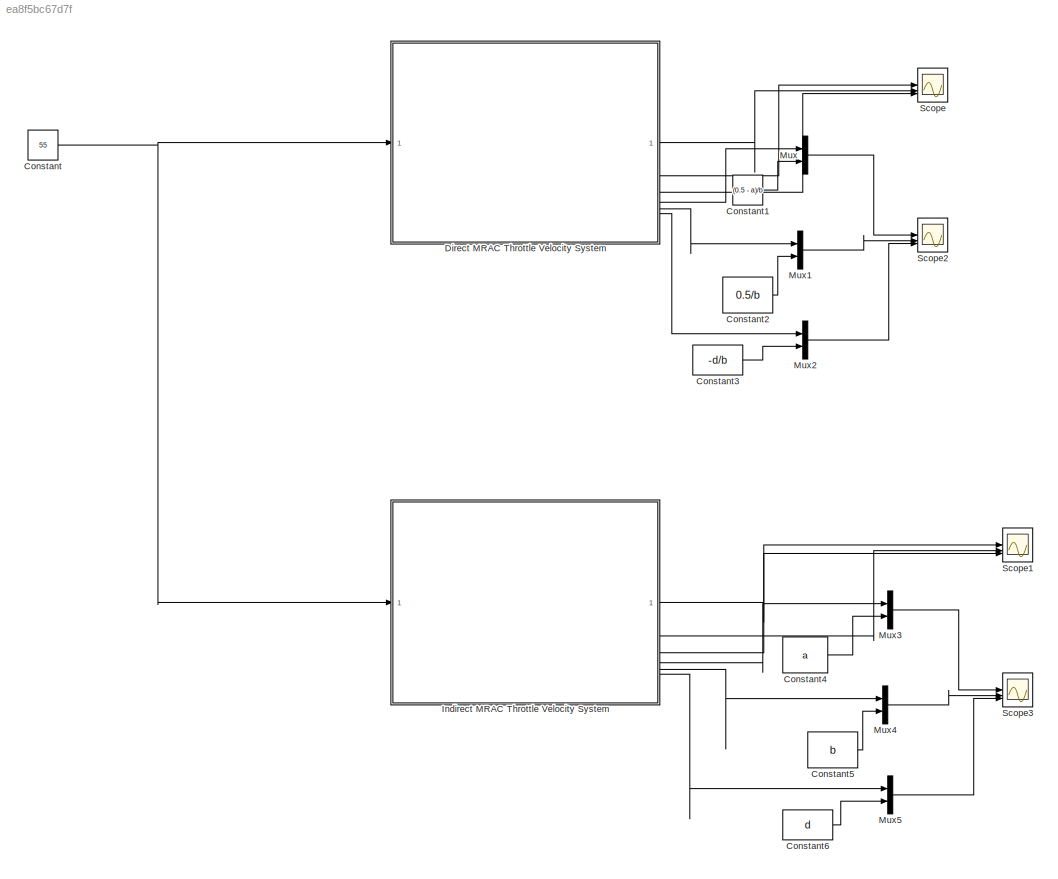
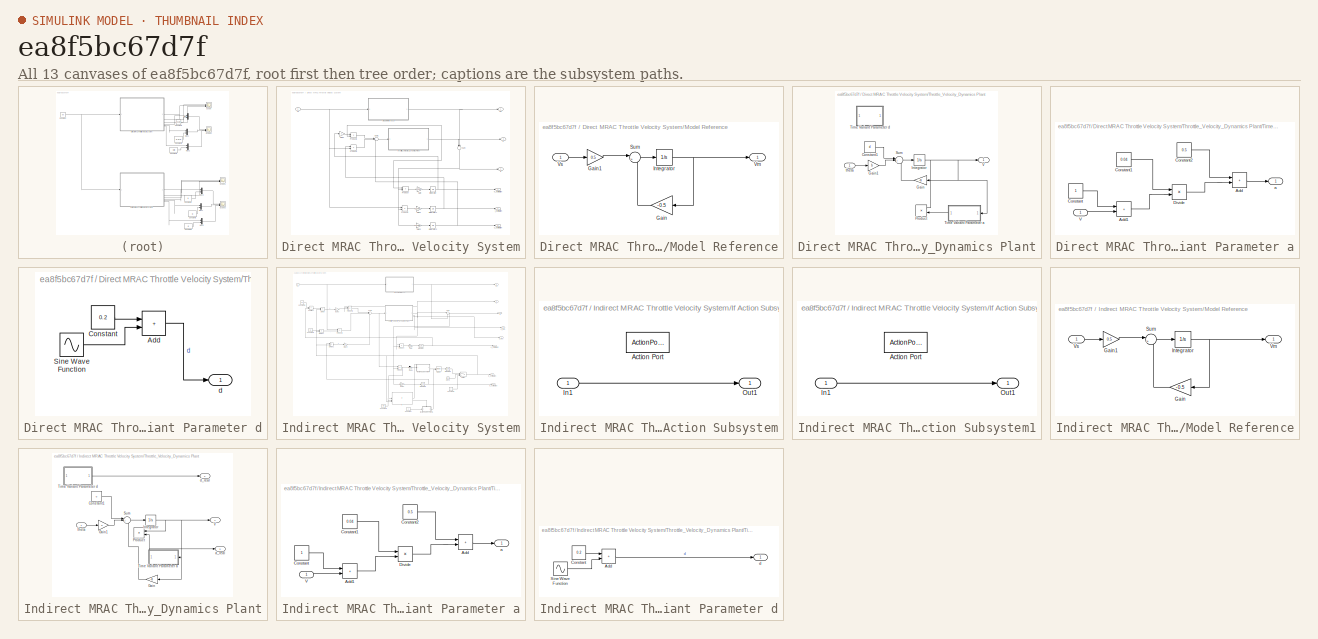
[diagram: thumbnail index - all 13 canvases of the model, root first then tree order]
MODEL slx_ea8f5bc67d7f
KIND model
CONFIG AbsTol = auto
CONFIG EnableMultiTasking = off
CONFIG FixedStep = auto
CONFIG MaxStep = auto
CONFIG MinStep = auto
CONFIG RelTol = 1e-3
CONFIG SampleTimeConstraint = Unconstrained
CONFIG SolverName = VariableStepAuto
CONFIG StartTime = 0.0
CONFIG StopTime = 20.0
BLOCK [Constant] Constant
  Value = 55
BLOCK [Constant] Constant1
  Value = (0.5 - a)/b
BLOCK [Constant] Constant2
  Value = 0.5/b
BLOCK [Constant] Constant3
  Value = -d/b
BLOCK [Constant] Constant4
  Value = a
BLOCK [Constant] Constant5
  Value = b
BLOCK [Constant] Constant6
  Value = d
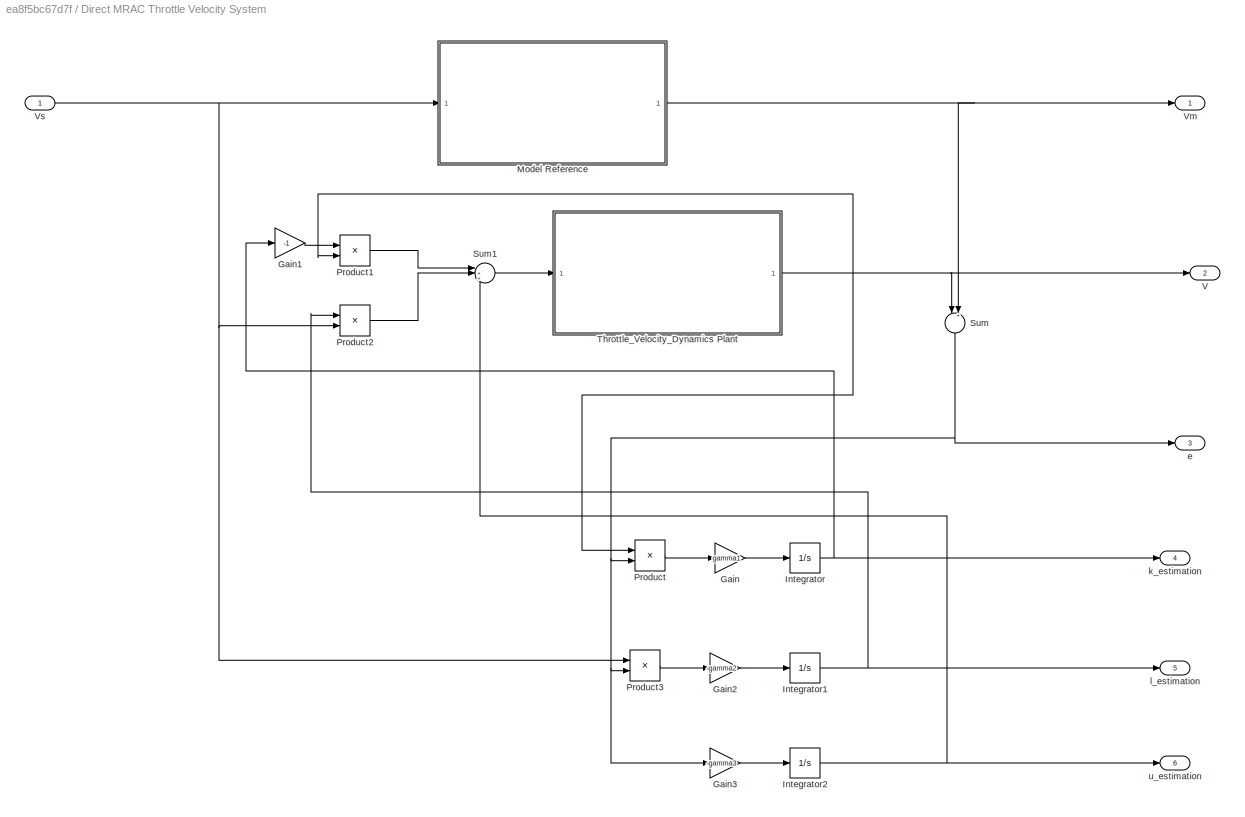
BLOCK [SubSystem] Direct MRAC Throttle Velocity System
BLOCK [Gain] Direct MRAC Throttle Velocity System/Gain
  Gain = gamma1
BLOCK [Gain] Direct MRAC Throttle Velocity System/Gain1
  Gain = -1
BLOCK [Gain] Direct MRAC Throttle Velocity System/Gain2
  Gain = -gamma2
BLOCK [Gain] Direct MRAC Throttle Velocity System/Gain3
  Gain = -gamma3
BLOCK [Integrator] Direct MRAC Throttle Velocity System/Integrator
BLOCK [Integrator] Direct MRAC Throttle Velocity System/Integrator1
BLOCK [Integrator] Direct MRAC Throttle Velocity System/Integrator2
BLOCK [SubSystem] Direct MRAC Throttle Velocity System/Model Reference
BLOCK [Gain] Direct MRAC Throttle Velocity System/Model Reference/Gain
  Gain = -0.5
BLOCK [Gain] Direct MRAC Throttle Velocity System/Model Reference/Gain1
  Gain = 0.5
BLOCK [Integrator] Direct MRAC Throttle Velocity System/Model Reference/Integrator
BLOCK [Sum] Direct MRAC Throttle Velocity System/Model Reference/Sum
  Inputs = |++
BLOCK [Outport] Direct MRAC Throttle Velocity System/Model Reference/Vm
BLOCK [Inport] Direct MRAC Throttle Velocity System/Model Reference/Vs
BLOCK [Product] Direct MRAC Throttle Velocity System/Product
BLOCK [Product] Direct MRAC Throttle Velocity System/Product1
BLOCK [Product] Direct MRAC Throttle Velocity System/Product2
BLOCK [Product] Direct MRAC Throttle Velocity System/Product3
BLOCK [Sum] Direct MRAC Throttle Velocity System/Sum
  Inputs = |+-
  NameLocation = right
BLOCK [Sum] Direct MRAC Throttle Velocity System/Sum1
  Inputs = |+++
BLOCK [SubSystem] Direct MRAC Throttle Velocity System/Throttle_Velocity_Dynamics Plant
BLOCK [Constant] Direct MRAC Throttle Velocity System/Throttle_Velocity_Dynamics Plant/Constant1
  Value = d
BLOCK [Gain] Direct MRAC Throttle Velocity System/Throttle_Velocity_Dynamics Plant/Gain
  Gain = -a
BLOCK [Gain] Direct MRAC Throttle Velocity System/Throttle_Velocity_Dynamics Plant/Gain1
  Gain = b
BLOCK [Integrator] Direct MRAC Throttle Velocity System/Throttle_Velocity_Dynamics Plant/Integrator
BLOCK [Product] Direct MRAC Throttle Velocity System/Throttle_Velocity_Dynamics Plant/Product
BLOCK [Sum] Direct MRAC Throttle Velocity System/Throttle_Velocity_Dynamics Plant/Sum
  Inputs = |+++
BLOCK [SubSystem] Direct MRAC Throttle Velocity System/Throttle_Velocity_Dynamics Plant/Time Variant Parameter a
BLOCK [Sum] Direct MRAC Throttle Velocity System/Throttle_Velocity_Dynamics Plant/Time Variant Parameter a/Add
  IconShape = rectangular
BLOCK [Sum] Direct MRAC Throttle Velocity System/Throttle_Velocity_Dynamics Plant/Time Variant Parameter a/Add1
  IconShape = rectangular
BLOCK [Constant] Direct MRAC Throttle Velocity System/Throttle_Velocity_Dynamics Plant/Time Variant Parameter a/Constant
BLOCK [Constant] Direct MRAC Throttle Velocity System/Throttle_Velocity_Dynamics Plant/Time Variant Parameter a/Constant1
  Value = 0.04
BLOCK [Constant] Direct MRAC Throttle Velocity System/Throttle_Velocity_Dynamics Plant/Time Variant Parameter a/Constant2
  Value = 0.5
BLOCK [Product] Direct MRAC Throttle Velocity System/Throttle_Velocity_Dynamics Plant/Time Variant Parameter a/Divide
  Inputs = */
BLOCK [Inport] Direct MRAC Throttle Velocity System/Throttle_Velocity_Dynamics Plant/Time Variant Parameter a/V
BLOCK [Outport] Direct MRAC Throttle Velocity System/Throttle_Velocity_Dynamics Plant/Time Variant Parameter a/a
BLOCK [SubSystem] Direct MRAC Throttle Velocity System/Throttle_Velocity_Dynamics Plant/Time Variant Parameter d
BLOCK [Sum] Direct MRAC Throttle Velocity System/Throttle_Velocity_Dynamics Plant/Time Variant Parameter d/Add
  IconShape = rectangular
BLOCK [Constant] Direct MRAC Throttle Velocity System/Throttle_Velocity_Dynamics Plant/Time Variant Parameter d/Constant
  Value = 0.2
BLOCK [Sin] Direct MRAC Throttle Velocity System/Throttle_Velocity_Dynamics Plant/Time Variant Parameter d/Sine Wave Function
  Frequency = 0.02
  SampleTime = 0
BLOCK [Outport] Direct MRAC Throttle Velocity System/Throttle_Velocity_Dynamics Plant/Time Variant Parameter d/d
BLOCK [Outport] Direct MRAC Throttle Velocity System/Throttle_Velocity_Dynamics Plant/V
BLOCK [Inport] Direct MRAC Throttle Velocity System/Throttle_Velocity_Dynamics Plant/theta
BLOCK [Outport] Direct MRAC Throttle Velocity System/V
  Port = 2
BLOCK [Outport] Direct MRAC Throttle Velocity System/Vm
BLOCK [Inport] Direct MRAC Throttle Velocity System/Vs
BLOCK [Outport] Direct MRAC Throttle Velocity System/e
  Port = 3
BLOCK [Outport] Direct MRAC Throttle Velocity System/k_estimation
  Port = 4
BLOCK [Outport] Direct MRAC Throttle Velocity System/l_estimation
  Port = 5
BLOCK [Outport] Direct MRAC Throttle Velocity System/u_estimation
  Port = 6
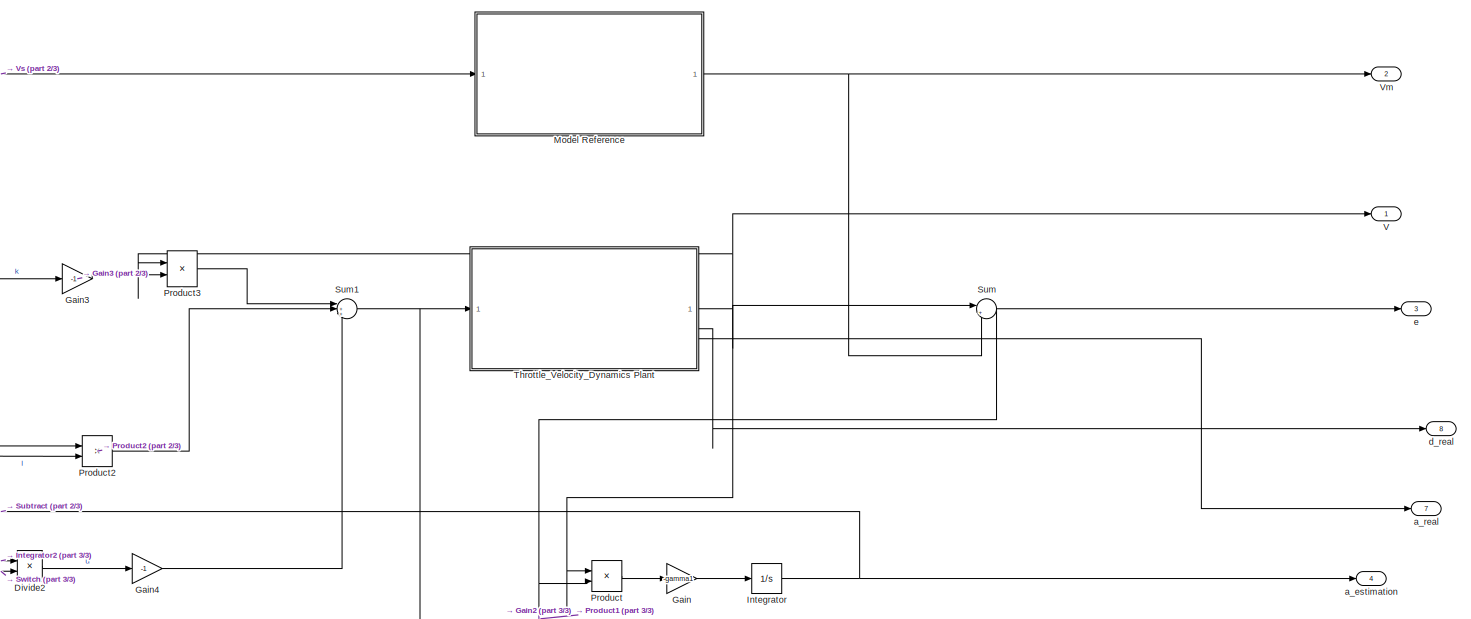
[diagram: Indirect MRAC Throttle Velocity System - part 1/3, full width, top band]
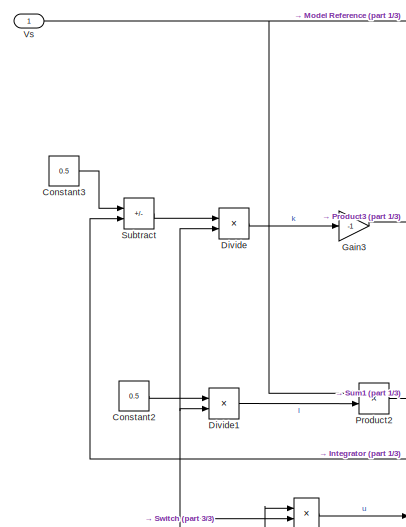
[diagram: Indirect MRAC Throttle Velocity System - part 2/3, top left region]
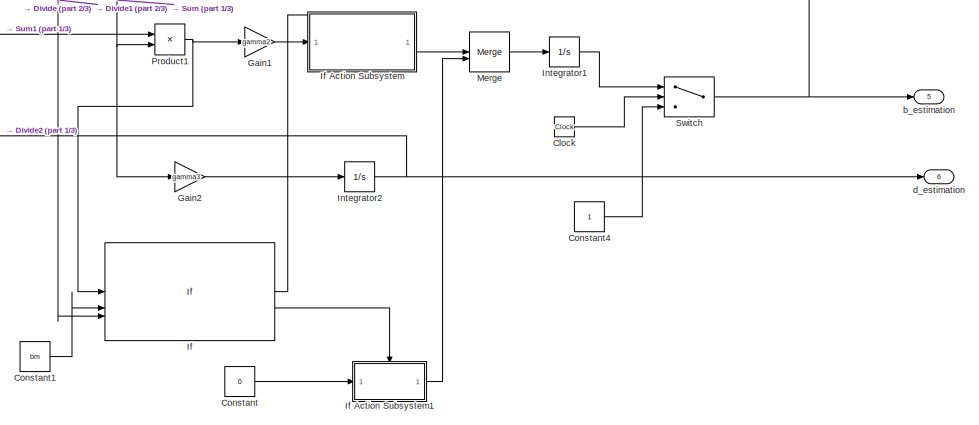
[diagram: Indirect MRAC Throttle Velocity System - part 3/3, bottom right region]
BLOCK [SubSystem] Indirect MRAC Throttle Velocity System
BLOCK [Clock] Indirect MRAC Throttle Velocity System/Clock
BLOCK [Constant] Indirect MRAC Throttle Velocity System/Constant
  Value = 0
BLOCK [Constant] Indirect MRAC Throttle Velocity System/Constant1
  Value = bm
BLOCK [Constant] Indirect MRAC Throttle Velocity System/Constant2
  Value = 0.5
BLOCK [Constant] Indirect MRAC Throttle Velocity System/Constant3
  Value = 0.5
BLOCK [Constant] Indirect MRAC Throttle Velocity System/Constant4
BLOCK [Product] Indirect MRAC Throttle Velocity System/Divide
  Inputs = */
BLOCK [Product] Indirect MRAC Throttle Velocity System/Divide1
  Inputs = */
BLOCK [Product] Indirect MRAC Throttle Velocity System/Divide2
  Inputs = */
BLOCK [Gain] Indirect MRAC Throttle Velocity System/Gain
  Gain = -gamma1
BLOCK [Gain] Indirect MRAC Throttle Velocity System/Gain1
  Gain = gamma2
BLOCK [Gain] Indirect MRAC Throttle Velocity System/Gain2
  Gain = gamma3
BLOCK [Gain] Indirect MRAC Throttle Velocity System/Gain3
  Gain = -1
BLOCK [Gain] Indirect MRAC Throttle Velocity System/Gain4
  Gain = -1
BLOCK [If] Indirect MRAC Throttle Velocity System/If
  IfExpression = (u3 > u2) | (u3 == u2 & u1 >= 0)
  NumInputs = 3
BLOCK [SubSystem] Indirect MRAC Throttle Velocity System/If Action Subsystem
  TreatAsAtomicUnit = on
BLOCK [ActionPort] Indirect MRAC Throttle Velocity System/If Action Subsystem/Action Port
  ActionPortLabel = if((u3 > u2) | (u3 == u2 & u1 >= 0))
BLOCK [Inport] Indirect MRAC Throttle Velocity System/If Action Subsystem/In1
BLOCK [Outport] Indirect MRAC Throttle Velocity System/If Action Subsystem/Out1
BLOCK [SubSystem] Indirect MRAC Throttle Velocity System/If Action Subsystem1
  TreatAsAtomicUnit = on
BLOCK [ActionPort] Indirect MRAC Throttle Velocity System/If Action Subsystem1/Action Port
  ActionPortLabel = else
BLOCK [Inport] Indirect MRAC Throttle Velocity System/If Action Subsystem1/In1
BLOCK [Outport] Indirect MRAC Throttle Velocity System/If Action Subsystem1/Out1
BLOCK [Integrator] Indirect MRAC Throttle Velocity System/Integrator
BLOCK [Integrator] Indirect MRAC Throttle Velocity System/Integrator1
BLOCK [Integrator] Indirect MRAC Throttle Velocity System/Integrator2
BLOCK [Merge] Indirect MRAC Throttle Velocity System/Merge
BLOCK [SubSystem] Indirect MRAC Throttle Velocity System/Model Reference
BLOCK [Gain] Indirect MRAC Throttle Velocity System/Model Reference/Gain
  Gain = -0.5
BLOCK [Gain] Indirect MRAC Throttle Velocity System/Model Reference/Gain1
  Gain = 0.5
BLOCK [Integrator] Indirect MRAC Throttle Velocity System/Model Reference/Integrator
BLOCK [Sum] Indirect MRAC Throttle Velocity System/Model Reference/Sum
  Inputs = |++
BLOCK [Outport] Indirect MRAC Throttle Velocity System/Model Reference/Vm
BLOCK [Inport] Indirect MRAC Throttle Velocity System/Model Reference/Vs
BLOCK [Product] Indirect MRAC Throttle Velocity System/Product
BLOCK [Product] Indirect MRAC Throttle Velocity System/Product1
BLOCK [Product] Indirect MRAC Throttle Velocity System/Product2
BLOCK [Product] Indirect MRAC Throttle Velocity System/Product3
BLOCK [Sum] Indirect MRAC Throttle Velocity System/Subtract
  IconShape = rectangular
  Inputs = +-
BLOCK [Sum] Indirect MRAC Throttle Velocity System/Sum
  Inputs = |+-
BLOCK [Sum] Indirect MRAC Throttle Velocity System/Sum1
  Inputs = |+++
BLOCK [Switch] Indirect MRAC Throttle Velocity System/Switch
  Criteria = u2 > Threshold
  InputSameDT = off
  SaturateOnIntegerOverflow = off
  Threshold = 0.25
BLOCK [SubSystem] Indirect MRAC Throttle Velocity System/Throttle_Velocity_Dynamics Plant
BLOCK [Constant] Indirect MRAC Throttle Velocity System/Throttle_Velocity_Dynamics Plant/Constant1
  Value = d
BLOCK [Gain] Indirect MRAC Throttle Velocity System/Throttle_Velocity_Dynamics Plant/Gain
  Gain = -a
BLOCK [Gain] Indirect MRAC Throttle Velocity System/Throttle_Velocity_Dynamics Plant/Gain1
  Gain = b
BLOCK [Integrator] Indirect MRAC Throttle Velocity System/Throttle_Velocity_Dynamics Plant/Integrator
BLOCK [Product] Indirect MRAC Throttle Velocity System/Throttle_Velocity_Dynamics Plant/Product
BLOCK [Sum] Indirect MRAC Throttle Velocity System/Throttle_Velocity_Dynamics Plant/Sum
  Inputs = |+++
BLOCK [SubSystem] Indirect MRAC Throttle Velocity System/Throttle_Velocity_Dynamics Plant/Time Variant Parameter a
BLOCK [Sum] Indirect MRAC Throttle Velocity System/Throttle_Velocity_Dynamics Plant/Time Variant Parameter a/Add
  IconShape = rectangular
BLOCK [Sum] Indirect MRAC Throttle Velocity System/Throttle_Velocity_Dynamics Plant/Time Variant Parameter a/Add1
  IconShape = rectangular
BLOCK [Constant] Indirect MRAC Throttle Velocity System/Throttle_Velocity_Dynamics Plant/Time Variant Parameter a/Constant
BLOCK [Constant] Indirect MRAC Throttle Velocity System/Throttle_Velocity_Dynamics Plant/Time Variant Parameter a/Constant1
  Value = 0.04
BLOCK [Constant] Indirect MRAC Throttle Velocity System/Throttle_Velocity_Dynamics Plant/Time Variant Parameter a/Constant2
  Value = 0.5
BLOCK [Product] Indirect MRAC Throttle Velocity System/Throttle_Velocity_Dynamics Plant/Time Variant Parameter a/Divide
  Inputs = */
BLOCK [Inport] Indirect MRAC Throttle Velocity System/Throttle_Velocity_Dynamics Plant/Time Variant Parameter a/V
BLOCK [Outport] Indirect MRAC Throttle Velocity System/Throttle_Velocity_Dynamics Plant/Time Variant Parameter a/a
BLOCK [SubSystem] Indirect MRAC Throttle Velocity System/Throttle_Velocity_Dynamics Plant/Time Variant Parameter d
BLOCK [Sum] Indirect MRAC Throttle Velocity System/Throttle_Velocity_Dynamics Plant/Time Variant Parameter d/Add
  IconShape = rectangular
BLOCK [Constant] Indirect MRAC Throttle Velocity System/Throttle_Velocity_Dynamics Plant/Time Variant Parameter d/Constant
  Value = 0.2
BLOCK [Sin] Indirect MRAC Throttle Velocity System/Throttle_Velocity_Dynamics Plant/Time Variant Parameter d/Sine Wave Function
  Frequency = 0.02
  SampleTime = 0
BLOCK [Outport] Indirect MRAC Throttle Velocity System/Throttle_Velocity_Dynamics Plant/Time Variant Parameter d/d
BLOCK [Outport] Indirect MRAC Throttle Velocity System/Throttle_Velocity_Dynamics Plant/V
BLOCK [Outport] Indirect MRAC Throttle Velocity System/Throttle_Velocity_Dynamics Plant/a_real
  Port = 3
BLOCK [Outport] Indirect MRAC Throttle Velocity System/Throttle_Velocity_Dynamics Plant/d_real
  Port = 2
BLOCK [Inport] Indirect MRAC Throttle Velocity System/Throttle_Velocity_Dynamics Plant/theta
BLOCK [Outport] Indirect MRAC Throttle Velocity System/V
BLOCK [Outport] Indirect MRAC Throttle Velocity System/Vm
  Port = 2
BLOCK [Inport] Indirect MRAC Throttle Velocity System/Vs
BLOCK [Outport] Indirect MRAC Throttle Velocity System/a_estimation
  Port = 4
BLOCK [Outport] Indirect MRAC Throttle Velocity System/a_real
  Port = 7
BLOCK [Outport] Indirect MRAC Throttle Velocity System/b_estimation
  Port = 5
BLOCK [Outport] Indirect MRAC Throttle Velocity System/d_estimation
  Port = 6
BLOCK [Outport] Indirect MRAC Throttle Velocity System/d_real
  Port = 8
BLOCK [Outport] Indirect MRAC Throttle Velocity System/e
  Port = 3
BLOCK [Mux] Mux
  DisplayOption = bar
  Inputs = 2
BLOCK [Mux] Mux1
  DisplayOption = bar
  Inputs = 2
BLOCK [Mux] Mux2
  DisplayOption = bar
  Inputs = 2
BLOCK [Mux] Mux3
  DisplayOption = bar
  Inputs = 2
BLOCK [Mux] Mux4
  DisplayOption = bar
  Inputs = 2
BLOCK [Mux] Mux5
  DisplayOption = bar
  Inputs = 2
BLOCK [Scope] Scope
  Floating = off
  NumInputPorts = 3
  ScopeSpecificationString = Simulink.scopes.TimeScopeBlockCfg('CurrentConfiguration', extmgr.ConfigurationSet(extmgr.Configuration('Core','General UI',true),extmgr.Configuration('Core','Source UI',true),extmgr.Configuration('Sources','WiredSimulink',true),extmgr.Configuration('Visuals','Time Domain',true,'SerializedDisplays',{struct('MinYLimReal','-6.87652','MaxYLimReal','61.88871','YLabelReal','','MinYLimMag','0.00000','Max...<+3134ch>
BLOCK [Scope] Scope1
  Floating = off
  NumInputPorts = 3
  ScopeSpecificationString = Simulink.scopes.TimeScopeBlockCfg('CurrentConfiguration', extmgr.ConfigurationSet(extmgr.Configuration('Core','General UI',true),extmgr.Configuration('Core','Source UI',true),extmgr.Configuration('Sources','WiredSimulink',true,'DataLoggingVariableName','ScopeData1'),extmgr.Configuration('Visuals','Time Domain',true,'SerializedDisplays',{struct('MinYLimReal','-6.88712','MaxYLimReal','61.98408','YLa...<+3158ch>
BLOCK [Scope] Scope2
  Floating = off
  NumInputPorts = 3
  ScopeSpecificationString = Simulink.scopes.TimeScopeBlockCfg('CurrentConfiguration', extmgr.ConfigurationSet(extmgr.Configuration('Core','General UI',true),extmgr.Configuration('Core','Source UI',true),extmgr.Configuration('Sources','WiredSimulink',true,'DataLoggingVariableName','ScopeData2'),extmgr.Configuration('Visuals','Time Domain',true,'SerializedDisplays',{struct('MinYLimReal','-0.14652','MaxYLimReal','0.29003','YLab...<+3180ch>
BLOCK [Scope] Scope3
  Floating = off
  NumInputPorts = 3
  ScopeSpecificationString = Simulink.scopes.TimeScopeBlockCfg('CurrentConfiguration', extmgr.ConfigurationSet(extmgr.Configuration('Core','General UI',true),extmgr.Configuration('Core','Source UI',true),extmgr.Configuration('Sources','WiredSimulink',true,'DataLoggingVariableName','ScopeData3'),extmgr.Configuration('Visuals','Time Domain',true,'SerializedDisplays',{struct('MinYLimReal','-4.29038','MaxYLimReal','2.25021','YLab...<+3186ch>
LINE Constant1:1 -> Mux:2
LINE Constant2:1 -> Mux1:2
LINE Constant3:1 -> Mux2:2
LINE Constant4:1 -> Mux3:2
LINE Constant5:1 -> Mux4:2
LINE Constant6:1 -> Mux5:2
NET Constant:1 -> Direct MRAC Throttle Velocity System:1, Indirect MRAC Throttle Velocity System:1
LINE Direct MRAC Throttle Velocity System/Gain1:1 -> Direct MRAC Throttle Velocity System/Product1:1
LINE Direct MRAC Throttle Velocity System/Gain2:1 -> Direct MRAC Throttle Velocity System/Integrator1:1
LINE Direct MRAC Throttle Velocity System/Gain3:1 -> Direct MRAC Throttle Velocity System/Integrator2:1
LINE Direct MRAC Throttle Velocity System/Gain:1 -> Direct MRAC Throttle Velocity System/Integrator:1
NET Direct MRAC Throttle Velocity System/Integrator1:1 -> Direct MRAC Throttle Velocity System/Product2:1, Direct MRAC Throttle Velocity System/l_estimation:1
NET Direct MRAC Throttle Velocity System/Integrator2:1 -> Direct MRAC Throttle Velocity System/Sum1:3, Direct MRAC Throttle Velocity System/u_estimation:1
NET Direct MRAC Throttle Velocity System/Integrator:1 -> Direct MRAC Throttle Velocity System/Gain1:1, Direct MRAC Throttle Velocity System/k_estimation:1
LINE Direct MRAC Throttle Velocity System/Model Reference/Gain1:1 -> Direct MRAC Throttle Velocity System/Model Reference/Sum:1
LINE Direct MRAC Throttle Velocity System/Model Reference/Gain:1 -> Direct MRAC Throttle Velocity System/Model Reference/Sum:2
NET Direct MRAC Throttle Velocity System/Model Reference/Integrator:1 -> Direct MRAC Throttle Velocity System/Model Reference/Gain:1, Direct MRAC Throttle Velocity System/Model Reference/Vm:1
LINE Direct MRAC Throttle Velocity System/Model Reference/Sum:1 -> Direct MRAC Throttle Velocity System/Model Reference/Integrator:1
LINE Direct MRAC Throttle Velocity System/Model Reference/Vs:1 -> Direct MRAC Throttle Velocity System/Model Reference/Gain1:1
NET Direct MRAC Throttle Velocity System/Model Reference:1 -> Direct MRAC Throttle Velocity System/Sum:2, Direct MRAC Throttle Velocity System/Vm:1
LINE Direct MRAC Throttle Velocity System/Product1:1 -> Direct MRAC Throttle Velocity System/Sum1:1
LINE Direct MRAC Throttle Velocity System/Product2:1 -> Direct MRAC Throttle Velocity System/Sum1:2
LINE Direct MRAC Throttle Velocity System/Product3:1 -> Direct MRAC Throttle Velocity System/Gain2:1
LINE Direct MRAC Throttle Velocity System/Product:1 -> Direct MRAC Throttle Velocity System/Gain:1
LINE Direct MRAC Throttle Velocity System/Sum1:1 -> Direct MRAC Throttle Velocity System/Throttle_Velocity_Dynamics Plant:1
NET Direct MRAC Throttle Velocity System/Sum:1 -> Direct MRAC Throttle Velocity System/Gain3:1, Direct MRAC Throttle Velocity System/Product3:2, Direct MRAC Throttle Velocity System/Product:2, Direct MRAC Throttle Velocity System/e:1
LINE Direct MRAC Throttle Velocity System/Throttle_Velocity_Dynamics Plant/Constant1:1 -> Direct MRAC Throttle Velocity System/Throttle_Velocity_Dynamics Plant/Sum:1
LINE Direct MRAC Throttle Velocity System/Throttle_Velocity_Dynamics Plant/Gain1:1 -> Direct MRAC Throttle Velocity System/Throttle_Velocity_Dynamics Plant/Sum:2
LINE Direct MRAC Throttle Velocity System/Throttle_Velocity_Dynamics Plant/Gain:1 -> Direct MRAC Throttle Velocity System/Throttle_Velocity_Dynamics Plant/Sum:3
NET Direct MRAC Throttle Velocity System/Throttle_Velocity_Dynamics Plant/Integrator:1 -> Direct MRAC Throttle Velocity System/Throttle_Velocity_Dynamics Plant/Gain:1, Direct MRAC Throttle Velocity System/Throttle_Velocity_Dynamics Plant/Product:1, Direct MRAC Throttle Velocity System/Throttle_Velocity_Dynamics Plant/Time Variant Parameter a:1, Direct MRAC Throttle Velocity System/Throttle_Velocity_Dynamics Plant/V:1
LINE Direct MRAC Throttle Velocity System/Throttle_Velocity_Dynamics Plant/Sum:1 -> Direct MRAC Throttle Velocity System/Throttle_Velocity_Dynamics Plant/Integrator:1
LINE Direct MRAC Throttle Velocity System/Throttle_Velocity_Dynamics Plant/Time Variant Parameter a/Add1:1 -> Direct MRAC Throttle Velocity System/Throttle_Velocity_Dynamics Plant/Time Variant Parameter a/Divide:2
LINE Direct MRAC Throttle Velocity System/Throttle_Velocity_Dynamics Plant/Time Variant Parameter a/Add:1 -> Direct MRAC Throttle Velocity System/Throttle_Velocity_Dynamics Plant/Time Variant Parameter a/a:1
LINE Direct MRAC Throttle Velocity System/Throttle_Velocity_Dynamics Plant/Time Variant Parameter a/Constant1:1 -> Direct MRAC Throttle Velocity System/Throttle_Velocity_Dynamics Plant/Time Variant Parameter a/Divide:1
LINE Direct MRAC Throttle Velocity System/Throttle_Velocity_Dynamics Plant/Time Variant Parameter a/Constant2:1 -> Direct MRAC Throttle Velocity System/Throttle_Velocity_Dynamics Plant/Time Variant Parameter a/Add:1
LINE Direct MRAC Throttle Velocity System/Throttle_Velocity_Dynamics Plant/Time Variant Parameter a/Constant:1 -> Direct MRAC Throttle Velocity System/Throttle_Velocity_Dynamics Plant/Time Variant Parameter a/Add1:1
LINE Direct MRAC Throttle Velocity System/Throttle_Velocity_Dynamics Plant/Time Variant Parameter a/Divide:1 -> Direct MRAC Throttle Velocity System/Throttle_Velocity_Dynamics Plant/Time Variant Parameter a/Add:2
LINE Direct MRAC Throttle Velocity System/Throttle_Velocity_Dynamics Plant/Time Variant Parameter a/V:1 -> Direct MRAC Throttle Velocity System/Throttle_Velocity_Dynamics Plant/Time Variant Parameter a/Add1:2
LINE Direct MRAC Throttle Velocity System/Throttle_Velocity_Dynamics Plant/Time Variant Parameter a:1 -> Direct MRAC Throttle Velocity System/Throttle_Velocity_Dynamics Plant/Product:2
LINE Direct MRAC Throttle Velocity System/Throttle_Velocity_Dynamics Plant/Time Variant Parameter d/Add:1 -> Direct MRAC Throttle Velocity System/Throttle_Velocity_Dynamics Plant/Time Variant Parameter d/d:1
LINE Direct MRAC Throttle Velocity System/Throttle_Velocity_Dynamics Plant/Time Variant Parameter d/Constant:1 -> Direct MRAC Throttle Velocity System/Throttle_Velocity_Dynamics Plant/Time Variant Parameter d/Add:1
LINE Direct MRAC Throttle Velocity System/Throttle_Velocity_Dynamics Plant/Time Variant Parameter d/Sine Wave Function:1 -> Direct MRAC Throttle Velocity System/Throttle_Velocity_Dynamics Plant/Time Variant Parameter d/Add:2
LINE Direct MRAC Throttle Velocity System/Throttle_Velocity_Dynamics Plant/theta:1 -> Direct MRAC Throttle Velocity System/Throttle_Velocity_Dynamics Plant/Gain1:1
NET Direct MRAC Throttle Velocity System/Throttle_Velocity_Dynamics Plant:1 -> Direct MRAC Throttle Velocity System/Product1:2, Direct MRAC Throttle Velocity System/Product:1, Direct MRAC Throttle Velocity System/Sum:1, Direct MRAC Throttle Velocity System/V:1
NET Direct MRAC Throttle Velocity System/Vs:1 -> Direct MRAC Throttle Velocity System/Model Reference:1, Direct MRAC Throttle Velocity System/Product2:2, Direct MRAC Throttle Velocity System/Product3:1
LINE Direct MRAC Throttle Velocity System:1 -> Scope:2
LINE Direct MRAC Throttle Velocity System:2 -> Scope:1
LINE Direct MRAC Throttle Velocity System:3 -> Scope:3
LINE Direct MRAC Throttle Velocity System:4 -> Mux:1
LINE Direct MRAC Throttle Velocity System:5 -> Mux1:1
LINE Direct MRAC Throttle Velocity System:6 -> Mux2:1
LINE Indirect MRAC Throttle Velocity System/Clock:1 -> Indirect MRAC Throttle Velocity System/Switch:2
LINE Indirect MRAC Throttle Velocity System/Constant1:1 -> Indirect MRAC Throttle Velocity System/If:2
LINE Indirect MRAC Throttle Velocity System/Constant2:1 -> Indirect MRAC Throttle Velocity System/Divide1:1
LINE Indirect MRAC Throttle Velocity System/Constant3:1 -> Indirect MRAC Throttle Velocity System/Subtract:1
LINE Indirect MRAC Throttle Velocity System/Constant4:1 -> Indirect MRAC Throttle Velocity System/Switch:3
LINE Indirect MRAC Throttle Velocity System/Constant:1 -> Indirect MRAC Throttle Velocity System/If Action Subsystem1:1
LINE Indirect MRAC Throttle Velocity System/Divide1:1 -> Indirect MRAC Throttle Velocity System/Product2:2
LINE Indirect MRAC Throttle Velocity System/Divide2:1 -> Indirect MRAC Throttle Velocity System/Gain4:1
LINE Indirect MRAC Throttle Velocity System/Divide:1 -> Indirect MRAC Throttle Velocity System/Gain3:1
LINE Indirect MRAC Throttle Velocity System/Gain1:1 -> Indirect MRAC Throttle Velocity System/If Action Subsystem:1
LINE Indirect MRAC Throttle Velocity System/Gain2:1 -> Indirect MRAC Throttle Velocity System/Integrator2:1
LINE Indirect MRAC Throttle Velocity System/Gain3:1 -> Indirect MRAC Throttle Velocity System/Product3:2
LINE Indirect MRAC Throttle Velocity System/Gain4:1 -> Indirect MRAC Throttle Velocity System/Sum1:3
LINE Indirect MRAC Throttle Velocity System/Gain:1 -> Indirect MRAC Throttle Velocity System/Integrator:1
LINE Indirect MRAC Throttle Velocity System/If Action Subsystem/In1:1 -> Indirect MRAC Throttle Velocity System/If Action Subsystem/Out1:1
LINE Indirect MRAC Throttle Velocity System/If Action Subsystem1/In1:1 -> Indirect MRAC Throttle Velocity System/If Action Subsystem1/Out1:1
LINE Indirect MRAC Throttle Velocity System/If Action Subsystem1:1 -> Indirect MRAC Throttle Velocity System/Merge:2
LINE Indirect MRAC Throttle Velocity System/If Action Subsystem:1 -> Indirect MRAC Throttle Velocity System/Merge:1
LINE Indirect MRAC Throttle Velocity System/If:1 -> Indirect MRAC Throttle Velocity System/If Action Subsystem:ifaction
LINE Indirect MRAC Throttle Velocity System/If:2 -> Indirect MRAC Throttle Velocity System/If Action Subsystem1:ifaction
LINE Indirect MRAC Throttle Velocity System/Integrator1:1 -> Indirect MRAC Throttle Velocity System/Switch:1
NET Indirect MRAC Throttle Velocity System/Integrator2:1 -> Indirect MRAC Throttle Velocity System/Divide2:1, Indirect MRAC Throttle Velocity System/d_estimation:1
NET Indirect MRAC Throttle Velocity System/Integrator:1 -> Indirect MRAC Throttle Velocity System/Subtract:2, Indirect MRAC Throttle Velocity System/a_estimation:1
LINE Indirect MRAC Throttle Velocity System/Merge:1 -> Indirect MRAC Throttle Velocity System/Integrator1:1
LINE Indirect MRAC Throttle Velocity System/Model Reference/Gain1:1 -> Indirect MRAC Throttle Velocity System/Model Reference/Sum:1
LINE Indirect MRAC Throttle Velocity System/Model Reference/Gain:1 -> Indirect MRAC Throttle Velocity System/Model Reference/Sum:2
NET Indirect MRAC Throttle Velocity System/Model Reference/Integrator:1 -> Indirect MRAC Throttle Velocity System/Model Reference/Gain:1, Indirect MRAC Throttle Velocity System/Model Reference/Vm:1
LINE Indirect MRAC Throttle Velocity System/Model Reference/Sum:1 -> Indirect MRAC Throttle Velocity System/Model Reference/Integrator:1
LINE Indirect MRAC Throttle Velocity System/Model Reference/Vs:1 -> Indirect MRAC Throttle Velocity System/Model Reference/Gain1:1
NET Indirect MRAC Throttle Velocity System/Model Reference:1 -> Indirect MRAC Throttle Velocity System/Sum:2, Indirect MRAC Throttle Velocity System/Vm:1
NET Indirect MRAC Throttle Velocity System/Product1:1 -> Indirect MRAC Throttle Velocity System/Gain1:1, Indirect MRAC Throttle Velocity System/If:1
LINE Indirect MRAC Throttle Velocity System/Product2:1 -> Indirect MRAC Throttle Velocity System/Sum1:2
LINE Indirect MRAC Throttle Velocity System/Product3:1 -> Indirect MRAC Throttle Velocity System/Sum1:1
LINE Indirect MRAC Throttle Velocity System/Product:1 -> Indirect MRAC Throttle Velocity System/Gain:1
LINE Indirect MRAC Throttle Velocity System/Subtract:1 -> Indirect MRAC Throttle Velocity System/Divide:1
NET Indirect MRAC Throttle Velocity System/Sum1:1 -> Indirect MRAC Throttle Velocity System/Product1:1, Indirect MRAC Throttle Velocity System/Throttle_Velocity_Dynamics Plant:1
NET Indirect MRAC Throttle Velocity System/Sum:1 -> Indirect MRAC Throttle Velocity System/Gain2:1, Indirect MRAC Throttle Velocity System/Product1:2, Indirect MRAC Throttle Velocity System/Product:2, Indirect MRAC Throttle Velocity System/e:1
NET Indirect MRAC Throttle Velocity System/Switch:1 -> Indirect MRAC Throttle Velocity System/Divide1:2, Indirect MRAC Throttle Velocity System/Divide2:2, Indirect MRAC Throttle Velocity System/Divide:2, Indirect MRAC Throttle Velocity System/If:3, Indirect MRAC Throttle Velocity System/b_estimation:1
LINE Indirect MRAC Throttle Velocity System/Throttle_Velocity_Dynamics Plant/Constant1:1 -> Indirect MRAC Throttle Velocity System/Throttle_Velocity_Dynamics Plant/Sum:1
LINE Indirect MRAC Throttle Velocity System/Throttle_Velocity_Dynamics Plant/Gain1:1 -> Indirect MRAC Throttle Velocity System/Throttle_Velocity_Dynamics Plant/Sum:2
LINE Indirect MRAC Throttle Velocity System/Throttle_Velocity_Dynamics Plant/Gain:1 -> Indirect MRAC Throttle Velocity System/Throttle_Velocity_Dynamics Plant/Sum:3
NET Indirect MRAC Throttle Velocity System/Throttle_Velocity_Dynamics Plant/Integrator:1 -> Indirect MRAC Throttle Velocity System/Throttle_Velocity_Dynamics Plant/Gain:1, Indirect MRAC Throttle Velocity System/Throttle_Velocity_Dynamics Plant/Product:1, Indirect MRAC Throttle Velocity System/Throttle_Velocity_Dynamics Plant/Time Variant Parameter a:1, Indirect MRAC Throttle Velocity System/Throttle_Velocity_Dynamics Plant/V:1
LINE Indirect MRAC Throttle Velocity System/Throttle_Velocity_Dynamics Plant/Sum:1 -> Indirect MRAC Throttle Velocity System/Throttle_Velocity_Dynamics Plant/Integrator:1
LINE Indirect MRAC Throttle Velocity System/Throttle_Velocity_Dynamics Plant/Time Variant Parameter a/Add1:1 -> Indirect MRAC Throttle Velocity System/Throttle_Velocity_Dynamics Plant/Time Variant Parameter a/Divide:2
LINE Indirect MRAC Throttle Velocity System/Throttle_Velocity_Dynamics Plant/Time Variant Parameter a/Add:1 -> Indirect MRAC Throttle Velocity System/Throttle_Velocity_Dynamics Plant/Time Variant Parameter a/a:1
LINE Indirect MRAC Throttle Velocity System/Throttle_Velocity_Dynamics Plant/Time Variant Parameter a/Constant1:1 -> Indirect MRAC Throttle Velocity System/Throttle_Velocity_Dynamics Plant/Time Variant Parameter a/Divide:1
LINE Indirect MRAC Throttle Velocity System/Throttle_Velocity_Dynamics Plant/Time Variant Parameter a/Constant2:1 -> Indirect MRAC Throttle Velocity System/Throttle_Velocity_Dynamics Plant/Time Variant Parameter a/Add:1
LINE Indirect MRAC Throttle Velocity System/Throttle_Velocity_Dynamics Plant/Time Variant Parameter a/Constant:1 -> Indirect MRAC Throttle Velocity System/Throttle_Velocity_Dynamics Plant/Time Variant Parameter a/Add1:1
LINE Indirect MRAC Throttle Velocity System/Throttle_Velocity_Dynamics Plant/Time Variant Parameter a/Divide:1 -> Indirect MRAC Throttle Velocity System/Throttle_Velocity_Dynamics Plant/Time Variant Parameter a/Add:2
LINE Indirect MRAC Throttle Velocity System/Throttle_Velocity_Dynamics Plant/Time Variant Parameter a/V:1 -> Indirect MRAC Throttle Velocity System/Throttle_Velocity_Dynamics Plant/Time Variant Parameter a/Add1:2
NET Indirect MRAC Throttle Velocity System/Throttle_Velocity_Dynamics Plant/Time Variant Parameter a:1 -> Indirect MRAC Throttle Velocity System/Throttle_Velocity_Dynamics Plant/Product:2, Indirect MRAC Throttle Velocity System/Throttle_Velocity_Dynamics Plant/a_real:1
LINE Indirect MRAC Throttle Velocity System/Throttle_Velocity_Dynamics Plant/Time Variant Parameter d/Add:1 -> Indirect MRAC Throttle Velocity System/Throttle_Velocity_Dynamics Plant/Time Variant Parameter d/d:1
LINE Indirect MRAC Throttle Velocity System/Throttle_Velocity_Dynamics Plant/Time Variant Parameter d/Constant:1 -> Indirect MRAC Throttle Velocity System/Throttle_Velocity_Dynamics Plant/Time Variant Parameter d/Add:1
LINE Indirect MRAC Throttle Velocity System/Throttle_Velocity_Dynamics Plant/Time Variant Parameter d/Sine Wave Function:1 -> Indirect MRAC Throttle Velocity System/Throttle_Velocity_Dynamics Plant/Time Variant Parameter d/Add:2
LINE Indirect MRAC Throttle Velocity System/Throttle_Velocity_Dynamics Plant/Time Variant Parameter d:1 -> Indirect MRAC Throttle Velocity System/Throttle_Velocity_Dynamics Plant/d_real:1
LINE Indirect MRAC Throttle Velocity System/Throttle_Velocity_Dynamics Plant/theta:1 -> Indirect MRAC Throttle Velocity System/Throttle_Velocity_Dynamics Plant/Gain1:1
NET Indirect MRAC Throttle Velocity System/Throttle_Velocity_Dynamics Plant:1 -> Indirect MRAC Throttle Velocity System/Product3:1, Indirect MRAC Throttle Velocity System/Product:1, Indirect MRAC Throttle Velocity System/Sum:1, Indirect MRAC Throttle Velocity System/V:1
LINE Indirect MRAC Throttle Velocity System/Throttle_Velocity_Dynamics Plant:2 -> Indirect MRAC Throttle Velocity System/d_real:1
LINE Indirect MRAC Throttle Velocity System/Throttle_Velocity_Dynamics Plant:3 -> Indirect MRAC Throttle Velocity System/a_real:1
NET Indirect MRAC Throttle Velocity System/Vs:1 -> Indirect MRAC Throttle Velocity System/Model Reference:1, Indirect MRAC Throttle Velocity System/Product2:1
LINE Indirect MRAC Throttle Velocity System:1 -> Scope1:1
LINE Indirect MRAC Throttle Velocity System:2 -> Scope1:2
LINE Indirect MRAC Throttle Velocity System:3 -> Scope1:3
LINE Indirect MRAC Throttle Velocity System:4 -> Mux3:1
LINE Indirect MRAC Throttle Velocity System:5 -> Mux4:1
LINE Indirect MRAC Throttle Velocity System:6 -> Mux5:1
LINE Mux1:1 -> Scope2:2
LINE Mux2:1 -> Scope2:3
LINE Mux3:1 -> Scope3:1
LINE Mux4:1 -> Scope3:2
LINE Mux5:1 -> Scope3:3
LINE Mux:1 -> Scope2:1
note: NET lines group one-source signal fan-out (src -> all destinations, sorted); 1:1 wires keep LINE
